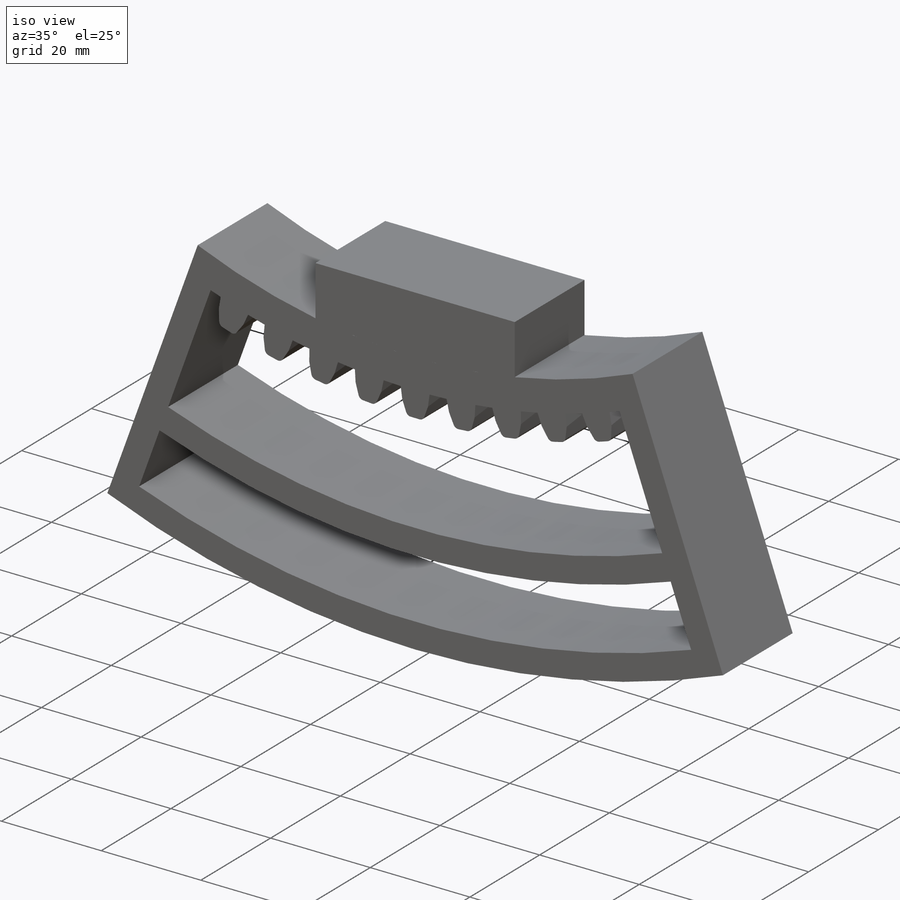
[diagram: iso view]
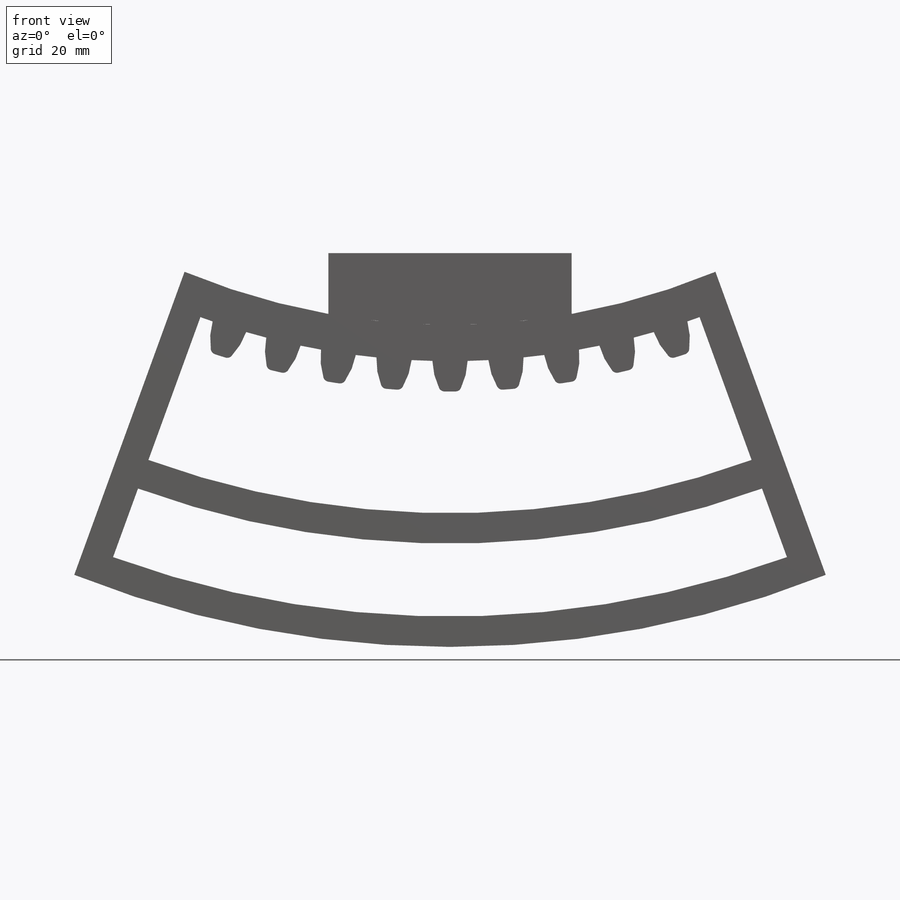
[diagram: front view]
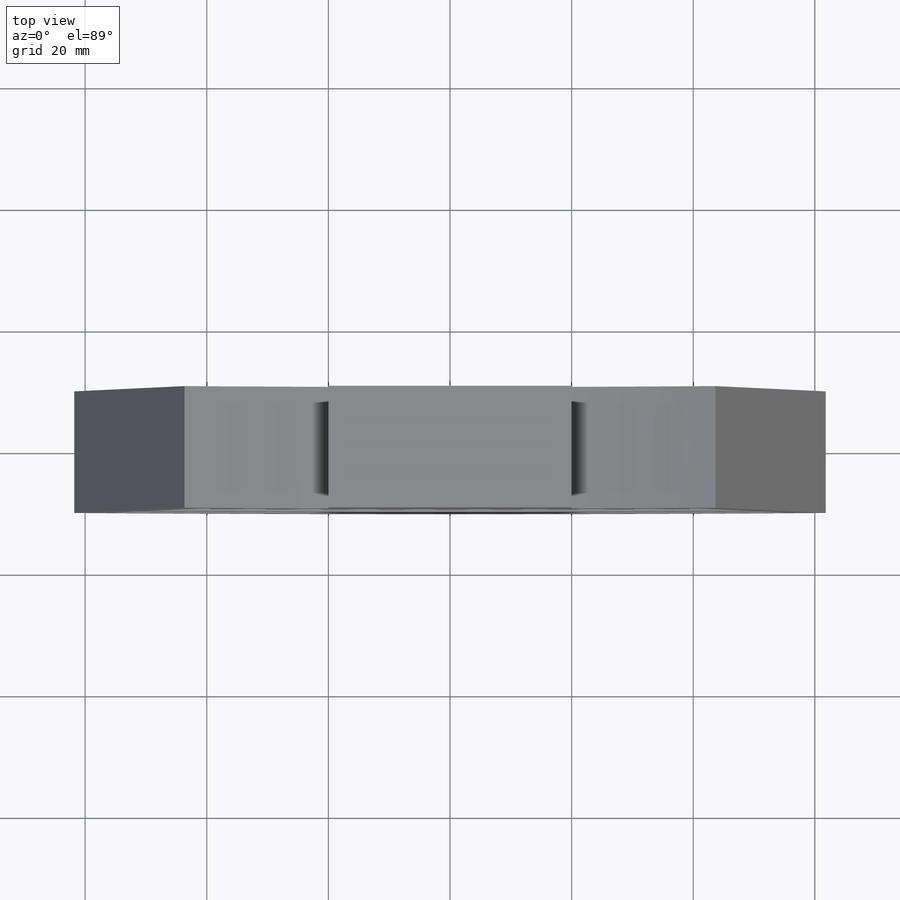
[diagram: top view]
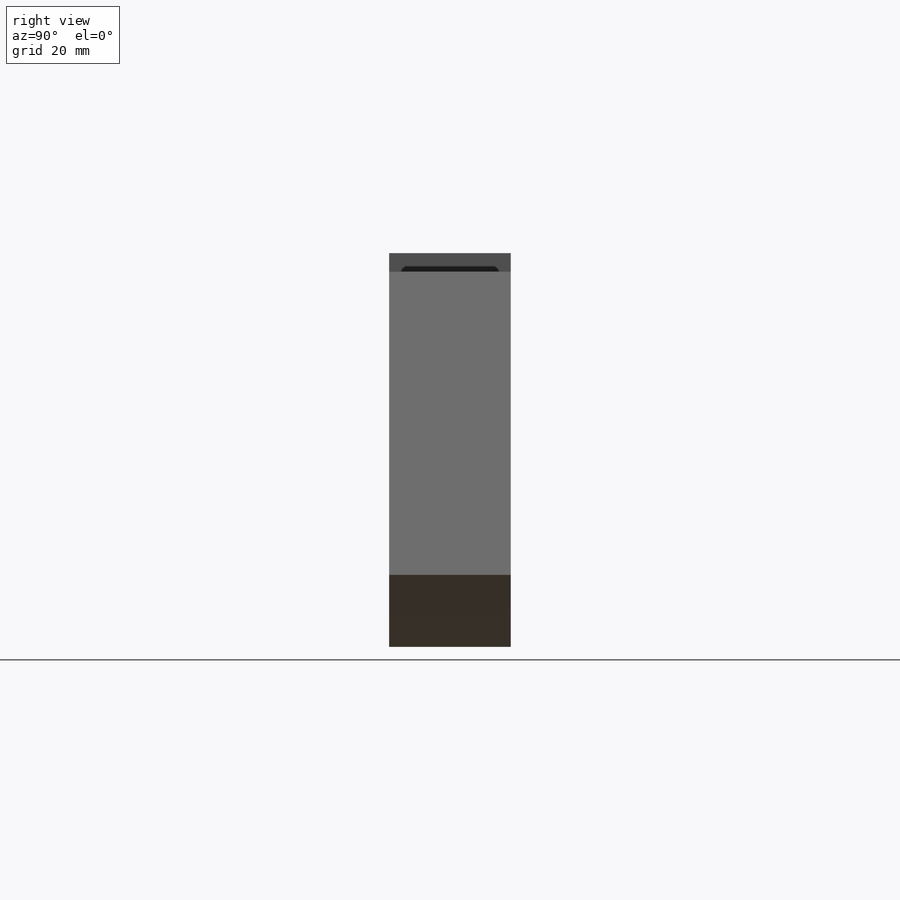
[diagram: right view]
SOLIDWORKS PART (.sldprt)
format: sldprt  version: not decoded by parser v0  size: 401,920 bytes
history: native  units: mm
features: sketch x5, plane x3, extrude x3, pattern_circular x2, material x1, fillet x1, cut_extrude x1, mirror x1 (+9 scaffold rows collapsed)
feature tree (26):
  scaffold x9  (default folders/planes/origin — collapsed)
  material  "Matériau <non spécifié>"
  plane  "Plan de face"
  plane  "Plan de dessus"
  plane  "Plan de droite"
  sketch  "Esquisse1"  dims[c1.D1=240.0mm c1.D2=~181.773643mm c1.D4=240.0mm c1.D5=228.0mm c2.D2=188.0mm c2.D7=114.0mm c2.D1=120.0mm c3.D7=~297.449724mm c3.D8=~297.449724mm c3.D4=162.0mm c3.D9=167.0mm c3.D10=~33.537946mm c3.D2=30.0mm c3.D3=~21.239649mm c4.D3=40.0deg c4.D4=20.0mm c4.D5=25.0mm c4.D2=6.0mm c4.D6=~14.142136mm c5.D6=10.0deg c5.D7=12.0mm c5.D8=5.0mm c5.D9=5.0mm c5.D4=5.0mm c5.D10=5.0mm c5.D11=5.0mm c5.D12=5.0mm c6.D10=~0.565005mm]
  extrude  "Boss.-Extru.1"  Depth=20mm
  sketch  "Esquisse2"  dims[c1.D3=120.0mm c1.D1=~306.578424mm c1.D2=~306.578424mm c1.D4=11.0mm c2.D1=5.0mm c2.D2=5.0mm c3.D1=5.0mm c3.D3=5.0mm c3.D4=5.0mm c4.D1=5.0mm c4.D2=5.0mm c4.D3=5.0mm c5.D1=5.0mm c5.D2=5.0mm c5.D3=3.0mm c6.D2=5.0mm]
  extrude  "Boss.-Extru.3"  Depth=20mm
  fillet  "Congé2"  Radius=1mm
  pattern_circular  "Répétition circulaire11"  Count=5 Angle=4.4deg
  sketch  "Esquisse3"  dims[D1=40.0mm D2=10.0mm]
  pattern_circular  "Répétition circulaire12"  Count=5 Angle=4.4deg
  extrude  "Boss.-Extru.5"  Depth=20mm
  sketch  "Esquisse4"  dims[D1=5.0mm]
  cut_extrude  "Enlèv. mat.-Extru.1"  [1 undecoded]
  mirror  "Symétrie1"
  sketch  "Esquisse5"  dims[c1.D1=~129.783834mm c1.D2=156.0mm c2.D1=23.5mm]
decode coverage: 11 of 13 modeling features carry decoded parameters
note: ~ marks probable driven/reference dimensions
note: 1 parameter value undecoded
note: suppression state not decoded; provenance and decode notes live in map.json
